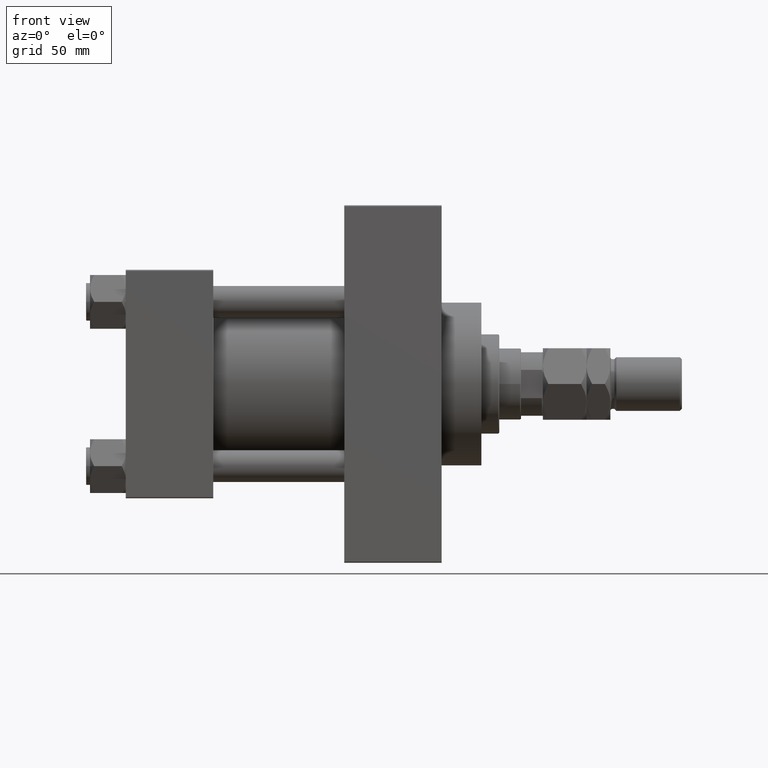
[diagram: clean part render]
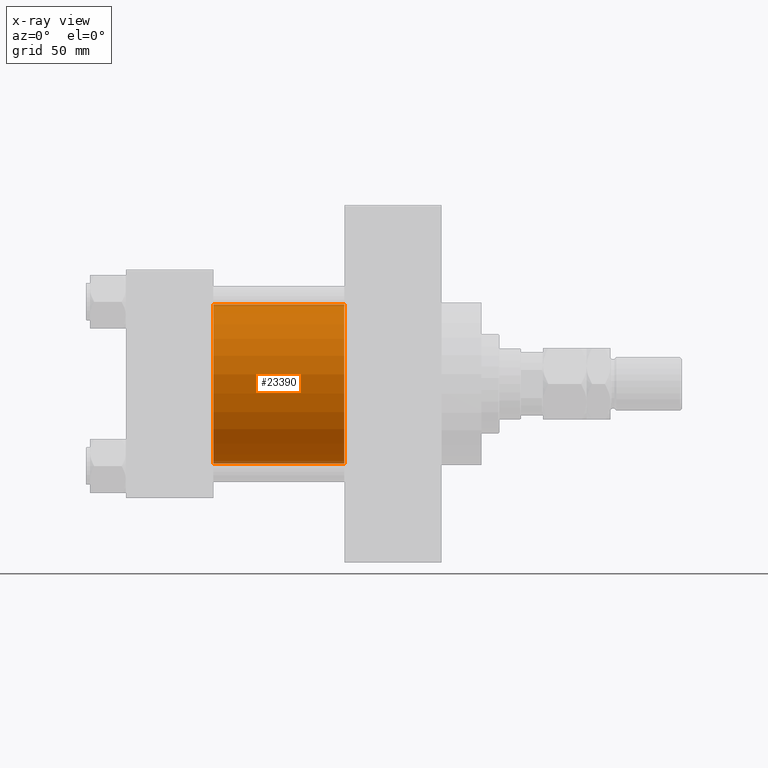
[diagram: x-ray — body ghosted, one internal face saturated and labeled with its STEP entity id]
A machine part, front view, then the same camera in x-ray: the body is ghosted and one INTERNAL B-rep face — a face not visible from any outside direction — is saturated and labeled: STEP entity #23390.
In plain terms, the highlighted cylindrical surface (partial cylindrical patch) has radius 40 mm, axis along (-1, -0, -0).
Its self-contained STEP definition (entity closure, byte-faithful):
#1188 = VERTEX_POINT ( 'NONE', #3421 ) ;
#1986 = DIRECTION ( 'NONE',  ( 1.000000000000000000, 0.000000000000000000, 0.000000000000000000 ) ) ;
#2080 = VECTOR ( 'NONE', #33044, 1000.000000000000000 ) ;
#2331 = CIRCLE ( 'NONE', #25425, 40.00000000000000000 ) ;
#2950 = CARTESIAN_POINT ( 'NONE',  ( 110.0000000000000000, -2.602085213965210642E-15, 40.00000000000000000 ) ) ;
#3421 = CARTESIAN_POINT ( 'NONE',  ( 110.0000000000000000, 2.296501982624201990E-15, -40.00000000000000000 ) ) ;
#5307 = AXIS2_PLACEMENT_3D ( 'NONE', #13030, #27758, #31504 ) ;
#6598 = CARTESIAN_POINT ( 'NONE',  ( 110.0000000000000000, -2.602085213965210642E-15, 40.00000000000000000 ) ) ;
#7083 = DIRECTION ( 'NONE',  ( 0.000000000000000000, 0.000000000000000000, -1.000000000000000000 ) ) ;
#8957 = LINE ( 'NONE', #20432, #48590 ) ;
#10320 = CARTESIAN_POINT ( 'NONE',  ( 44.00000000000000000, 2.296501982624201990E-15, -40.00000000000000000 ) ) ;
#10587 = VERTEX_POINT ( 'NONE', #14346 ) ;
#13030 = CARTESIAN_POINT ( 'NONE',  ( 110.0000000000000000, -2.602085213965210642E-15, 0.000000000000000000 ) ) ;
#13710 = DIRECTION ( 'NONE',  ( 0.000000000000000000, 0.000000000000000000, -1.000000000000000000 ) ) ;
#14346 = CARTESIAN_POINT ( 'NONE',  ( 44.00000000000000000, -2.602085213965210642E-15, 40.00000000000000000 ) ) ;
#18317 = CARTESIAN_POINT ( 'NONE',  ( 44.00000000000000000, -2.602085213965210642E-15, 0.000000000000000000 ) ) ;
#18890 = EDGE_CURVE ( 'NONE', #26834, #1188, #38716, .T. ) ;
#19399 = EDGE_CURVE ( 'NONE', #26834, #10587, #40774, .T. ) ;
#20432 = CARTESIAN_POINT ( 'NONE',  ( 110.0000000000000000, 2.296501982624201990E-15, -40.00000000000000000 ) ) ;
#21175 = AXIS2_PLACEMENT_3D ( 'NONE', #36158, #1986, #13710 ) ;
#23390 = ADVANCED_FACE ( 'NONE', ( #46688 ), #46943, .F. ) ;
#24904 = ORIENTED_EDGE ( 'NONE', *, *, #18890, .T. ) ;
#25425 = AXIS2_PLACEMENT_3D ( 'NONE', #18317, #44493, #7083 ) ;
#26834 = VERTEX_POINT ( 'NONE', #2950 ) ;
#27758 = DIRECTION ( 'NONE',  ( -1.000000000000000000, -0.000000000000000000, -0.000000000000000000 ) ) ;
#30641 = EDGE_CURVE ( 'NONE', #10587, #33876, #2331, .T. ) ;
#31177 = EDGE_LOOP ( 'NONE', ( #24904, #42398, #44651, #31300 ) ) ;
#31300 = ORIENTED_EDGE ( 'NONE', *, *, #19399, .F. ) ;
#31504 = DIRECTION ( 'NONE',  ( 0.000000000000000000, 0.000000000000000000, 1.000000000000000000 ) ) ;
#32183 = EDGE_CURVE ( 'NONE', #1188, #33876, #8957, .T. ) ;
#33044 = DIRECTION ( 'NONE',  ( -1.000000000000000000, -0.000000000000000000, -0.000000000000000000 ) ) ;
#33876 = VERTEX_POINT ( 'NONE', #10320 ) ;
#35632 = DIRECTION ( 'NONE',  ( -1.000000000000000000, -0.000000000000000000, -0.000000000000000000 ) ) ;
#36158 = CARTESIAN_POINT ( 'NONE',  ( 110.0000000000000000, -2.602085213965210642E-15, 0.000000000000000000 ) ) ;
#38716 = CIRCLE ( 'NONE', #21175, 40.00000000000000000 ) ;
#40774 = LINE ( 'NONE', #6598, #2080 ) ;
#42398 = ORIENTED_EDGE ( 'NONE', *, *, #32183, .T. ) ;
#44493 = DIRECTION ( 'NONE',  ( 1.000000000000000000, 0.000000000000000000, 0.000000000000000000 ) ) ;
#44651 = ORIENTED_EDGE ( 'NONE', *, *, #30641, .F. ) ;
#46688 = FACE_OUTER_BOUND ( 'NONE', #31177, .T. ) ;
#46943 = CYLINDRICAL_SURFACE ( 'NONE', #5307, 40.00000000000000000 ) ;
#48590 = VECTOR ( 'NONE', #35632, 1000.000000000000000 ) ;